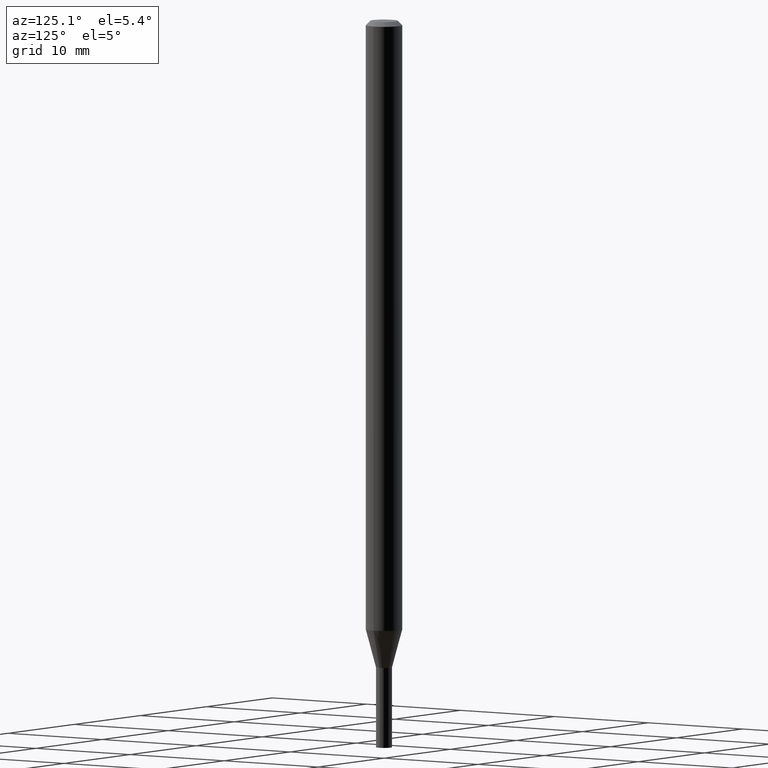
[diagram: clean part render]
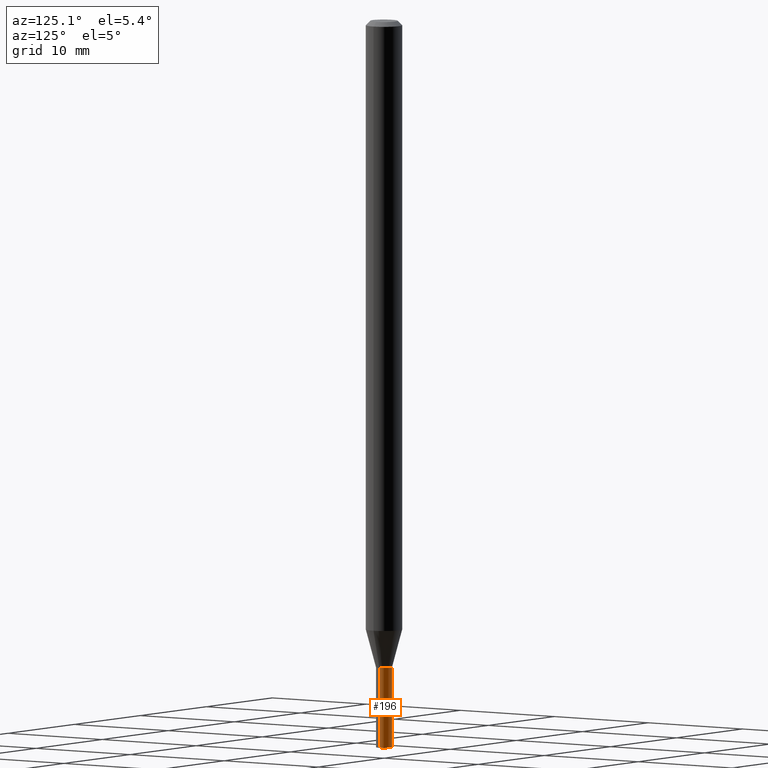
[diagram: same view with one face highlighted and labeled with its STEP entity id]
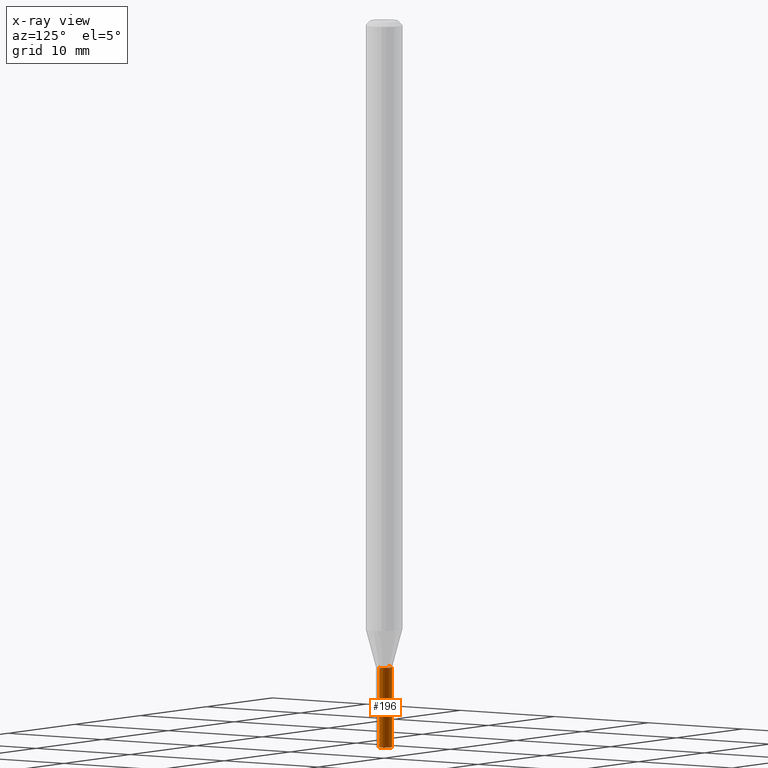
[diagram: x-ray of the same camera — body ghosted, the highlighted face saturated]
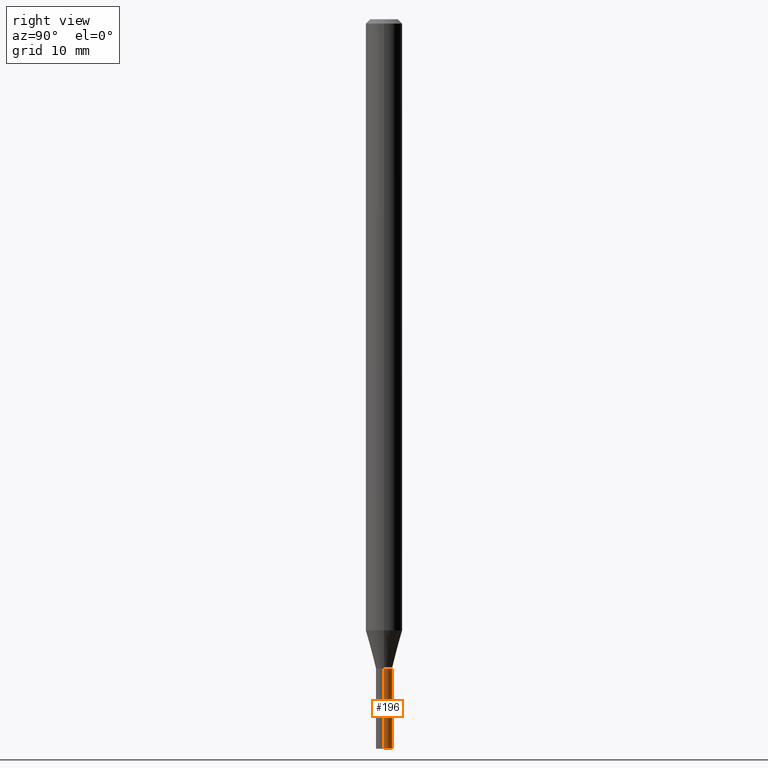
[diagram: same view with one face highlighted and labeled with its STEP entity id]
A machine part, auxiliary view. The second image highlights one B-rep face of the part: STEP entity #196.
The next image is the same camera in x-ray: the body ghosted, the highlighted face saturated — about 0% of this face is hidden behind the body in this view.
A second angle (right view) of the same face is appended — the face is thin or edge-on in the first view.
In plain terms, the highlighted cylindrical surface (edge-blend (fillet) strip) has radius 0.6985 mm, axis along (-0, 0, 1).
Its self-contained STEP definition (entity closure, byte-faithful):
#2 = ORIENTED_EDGE ( 'NONE', *, *, #334, .F. ) ;
#10 = VERTEX_POINT ( 'NONE', #122 ) ;
#20 = DIRECTION ( 'NONE',  ( -2.445468806185136877E-29, 3.491481338843145188E-15, 1.000000000000000000 ) ) ;
#25 = CARTESIAN_POINT ( 'NONE',  ( -0.02750000000000000014, 1.953992523340275521E-16, -1.352707149820099181E-30 ) ) ;
#40 = EDGE_LOOP ( 'NONE', ( #258, #145, #2, #157 ) ) ;
#58 = LINE ( 'NONE', #282, #143 ) ;
#84 = VECTOR ( 'NONE', #20, 39.37007874015748143 ) ;
#87 = CARTESIAN_POINT ( 'NONE',  ( 6.113672015462842613E-29, -8.728703347107864943E-15, -2.500000000000000000 ) ) ;
#90 = DIRECTION ( 'NONE',  ( -2.445468806185136597E-29, 3.491481338843145583E-15, 1.000000000000000000 ) ) ;
#96 = EDGE_CURVE ( 'NONE', #126, #333, #58, .T. ) ;
#99 = DIRECTION ( 'NONE',  ( -2.445468806185136597E-29, 3.491481338843145583E-15, 1.000000000000000000 ) ) ;
#101 = AXIS2_PLACEMENT_3D ( 'NONE', #87, #90, #159 ) ;
#122 = CARTESIAN_POINT ( 'NONE',  ( -0.02750000000000000014, -8.053225410682903621E-15, -2.225000000000000089 ) ) ;
#126 = VERTEX_POINT ( 'NONE', #315 ) ;
#128 = CIRCLE ( 'NONE', #377, 0.02750000000000000014 ) ;
#143 = VECTOR ( 'NONE', #356, 39.37007874015748143 ) ;
#145 = ORIENTED_EDGE ( 'NONE', *, *, #345, .T. ) ;
#150 = CIRCLE ( 'NONE', #101, 0.02750000000000000014 ) ;
#157 = ORIENTED_EDGE ( 'NONE', *, *, #96, .F. ) ;
#159 = DIRECTION ( 'NONE',  ( 1.000000000000000000, -6.982962677686244622E-15, 0.000000000000000000 ) ) ;
#181 = AXIS2_PLACEMENT_3D ( 'NONE', #207, #99, #388 ) ;
#196 = ADVANCED_FACE ( 'NONE', ( #458 ), #427, .T. ) ;
#198 = DIRECTION ( 'NONE',  ( 1.000000000000000000, -6.982962677686279332E-15, 0.000000000000000000 ) ) ;
#207 = CARTESIAN_POINT ( 'NONE',  ( 0.000000000000000000, 0.000000000000000000, 0.000000000000000000 ) ) ;
#211 = VERTEX_POINT ( 'NONE', #391 ) ;
#258 = ORIENTED_EDGE ( 'NONE', *, *, #359, .T. ) ;
#279 = CARTESIAN_POINT ( 'NONE',  ( 5.441168093761929600E-29, -7.768545978925998537E-15, -2.225000000000000089 ) ) ;
#282 = CARTESIAN_POINT ( 'NONE',  ( 0.02750000000000000014, -1.920314736363723444E-16, 1.340948613343882413E-30 ) ) ;
#313 = CARTESIAN_POINT ( 'NONE',  ( 0.02750000000000000014, -7.960577452562371818E-15, -2.225000000000000089 ) ) ;
#315 = CARTESIAN_POINT ( 'NONE',  ( 0.02750000000000000014, -8.920734820744236646E-15, -2.500000000000000000 ) ) ;
#333 = VERTEX_POINT ( 'NONE', #313 ) ;
#334 = EDGE_CURVE ( 'NONE', #333, #10, #128, .T. ) ;
#345 = EDGE_CURVE ( 'NONE', #211, #10, #418, .T. ) ;
#356 = DIRECTION ( 'NONE',  ( -2.445468806185136877E-29, 3.491481338843145188E-15, 1.000000000000000000 ) ) ;
#359 = EDGE_CURVE ( 'NONE', #126, #211, #150, .T. ) ;
#377 = AXIS2_PLACEMENT_3D ( 'NONE', #279, #420, #198 ) ;
#388 = DIRECTION ( 'NONE',  ( 1.000000000000000000, -6.982962677686266711E-15, 4.876176775795935793E-29 ) ) ;
#391 = CARTESIAN_POINT ( 'NONE',  ( -0.02750000000000000014, -8.053225410682903621E-15, -2.500000000000000000 ) ) ;
#418 = LINE ( 'NONE', #25, #84 ) ;
#420 = DIRECTION ( 'NONE',  ( -2.445468806185136597E-29, 3.491481338843145583E-15, 1.000000000000000000 ) ) ;
#427 = CYLINDRICAL_SURFACE ( 'NONE', #181, 0.02750000000000000014 ) ;
#458 = FACE_OUTER_BOUND ( 'NONE', #40, .T. ) ;